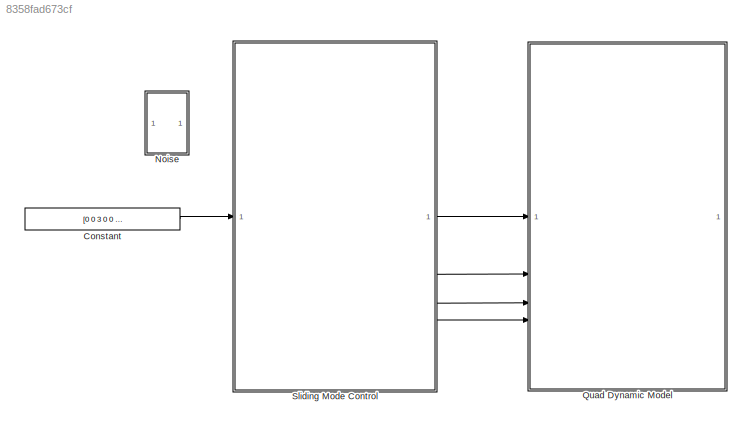
MODEL slx_8358fad673cf
KIND model
CONFIG AbsTol = auto
CONFIG EnableMultiTasking = off
CONFIG FixedStep = dT
CONFIG InitFcn = O = [0; 0; 0];        % world origin frame\nC = [0.0; 0.0; 0.0];  % camera origin frame\n\nd_initial = C - O;            % distance between camera and world frame\nang_initial = [0.0 0.0 0.0];  % initial orientation, [pi 0 pi/2] \nang_final = [0.0*pi/180  0.0*pi/180  0.0*pi/180]; \ninit_pose = [C ; ang_initial'];\nd_final=[0; 0; 3];\ndT=0.25;\ng = 9.81;\nmass = 1; L = 0.2; \nIx = 0.008; \nIy = 0.015;\nIz = 0.0...<+16ch>
CONFIG MaxStep = auto
CONFIG MinStep = auto
CONFIG RelTol = 1e-3
CONFIG SampleTimeConstraint = Unconstrained
CONFIG SolverName = ode4
CONFIG StartTime = 0.0
CONFIG StopTime = 20
BLOCK [Constant] Constant
  Value = [0 0 3 0 0 0]
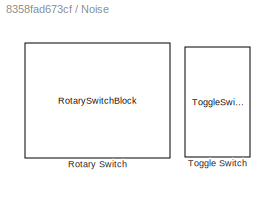
BLOCK [SubSystem] Noise
  Commented = on
BLOCK [RotarySwitchBlock] Noise/Rotary Switch
  LabelPosition = Bottom
BLOCK [ToggleSwitchBlock] Noise/Toggle Switch
  LabelPosition = Bottom
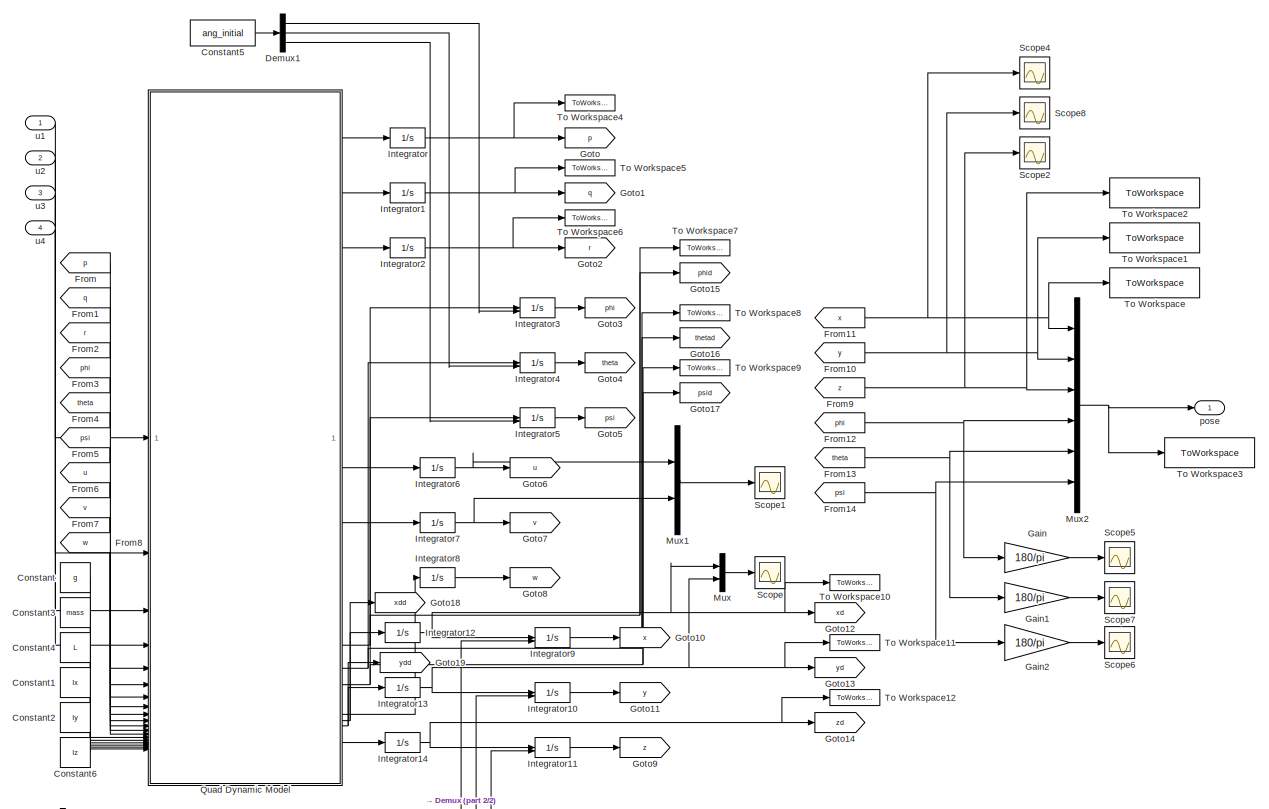
[diagram: Quad Dynamic Model - part 1/2, most of the canvas]
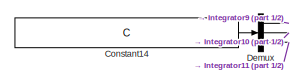
[diagram: Quad Dynamic Model - part 2/2, bottom left region]
BLOCK [SubSystem] Quad Dynamic Model
BLOCK [Constant] Quad Dynamic Model/Constant
  Value = g
BLOCK [Constant] Quad Dynamic Model/Constant1
  Value = Ix
BLOCK [Constant] Quad Dynamic Model/Constant14
  Value = C
BLOCK [Constant] Quad Dynamic Model/Constant2
  Value = Iy
BLOCK [Constant] Quad Dynamic Model/Constant3
  Value = mass
BLOCK [Constant] Quad Dynamic Model/Constant4
  Value = L
BLOCK [Constant] Quad Dynamic Model/Constant5
  Value = ang_initial
BLOCK [Constant] Quad Dynamic Model/Constant6
  Value = Iz
BLOCK [Demux] Quad Dynamic Model/Demux
  Outputs = 3
BLOCK [Demux] Quad Dynamic Model/Demux1
  Outputs = 3
BLOCK [From] Quad Dynamic Model/From
  GotoTag = p
  TagVisibility = global
BLOCK [From] Quad Dynamic Model/From1
  GotoTag = q
  TagVisibility = global
BLOCK [From] Quad Dynamic Model/From10
  GotoTag = y
  TagVisibility = global
BLOCK [From] Quad Dynamic Model/From11
  GotoTag = x
  TagVisibility = global
BLOCK [From] Quad Dynamic Model/From12
  GotoTag = phi
  TagVisibility = global
BLOCK [From] Quad Dynamic Model/From13
  GotoTag = theta
  TagVisibility = global
BLOCK [From] Quad Dynamic Model/From14
  GotoTag = psi
  TagVisibility = global
BLOCK [From] Quad Dynamic Model/From2
  GotoTag = r
  TagVisibility = global
BLOCK [From] Quad Dynamic Model/From3
  GotoTag = phi
  TagVisibility = global
BLOCK [From] Quad Dynamic Model/From4
  GotoTag = theta
  TagVisibility = global
BLOCK [From] Quad Dynamic Model/From5
  GotoTag = psi
  TagVisibility = global
BLOCK [From] Quad Dynamic Model/From6
  GotoTag = u
  TagVisibility = global
BLOCK [From] Quad Dynamic Model/From7
  GotoTag = v
  TagVisibility = global
BLOCK [From] Quad Dynamic Model/From8
  GotoTag = w
  TagVisibility = global
BLOCK [From] Quad Dynamic Model/From9
  GotoTag = z
  TagVisibility = global
BLOCK [Gain] Quad Dynamic Model/Gain
  Gain = 180/pi
BLOCK [Gain] Quad Dynamic Model/Gain1
  Gain = 180/pi
BLOCK [Gain] Quad Dynamic Model/Gain2
  Gain = 180/pi
BLOCK [Goto] Quad Dynamic Model/Goto
  GotoTag = p
  TagVisibility = global
BLOCK [Goto] Quad Dynamic Model/Goto1
  GotoTag = q
  TagVisibility = global
BLOCK [Goto] Quad Dynamic Model/Goto10
  GotoTag = x
  TagVisibility = global
BLOCK [Goto] Quad Dynamic Model/Goto11
  GotoTag = y
  TagVisibility = global
BLOCK [Goto] Quad Dynamic Model/Goto12
  GotoTag = xd
  TagVisibility = global
BLOCK [Goto] Quad Dynamic Model/Goto13
  GotoTag = yd
  TagVisibility = global
BLOCK [Goto] Quad Dynamic Model/Goto14
  GotoTag = zd
  TagVisibility = global
BLOCK [Goto] Quad Dynamic Model/Goto15
  GotoTag = phid
  TagVisibility = global
BLOCK [Goto] Quad Dynamic Model/Goto16
  GotoTag = thetad
  TagVisibility = global
BLOCK [Goto] Quad Dynamic Model/Goto17
  GotoTag = psid
  TagVisibility = global
BLOCK [Goto] Quad Dynamic Model/Goto18
  GotoTag = xdd
  TagVisibility = global
BLOCK [Goto] Quad Dynamic Model/Goto19
  GotoTag = ydd
  TagVisibility = global
BLOCK [Goto] Quad Dynamic Model/Goto2
  GotoTag = r
  TagVisibility = global
BLOCK [Goto] Quad Dynamic Model/Goto3
  GotoTag = phi
  TagVisibility = global
BLOCK [Goto] Quad Dynamic Model/Goto4
  GotoTag = theta
  TagVisibility = global
BLOCK [Goto] Quad Dynamic Model/Goto5
  GotoTag = psi
  TagVisibility = global
BLOCK [Goto] Quad Dynamic Model/Goto6
  GotoTag = u
  TagVisibility = global
BLOCK [Goto] Quad Dynamic Model/Goto7
  GotoTag = v
  TagVisibility = global
BLOCK [Goto] Quad Dynamic Model/Goto8
  GotoTag = w
  TagVisibility = global
BLOCK [Goto] Quad Dynamic Model/Goto9
  GotoTag = z
  TagVisibility = global
BLOCK [Integrator] Quad Dynamic Model/Integrator
  InitialCondition = -0.003775510005653
BLOCK [Integrator] Quad Dynamic Model/Integrator1
  InitialCondition = 0.003931066952646
BLOCK [Integrator] Quad Dynamic Model/Integrator10
  InitialConditionSource = external
BLOCK [Integrator] Quad Dynamic Model/Integrator11
  InitialConditionSource = external
BLOCK [Integrator] Quad Dynamic Model/Integrator12
BLOCK [Integrator] Quad Dynamic Model/Integrator13
BLOCK [Integrator] Quad Dynamic Model/Integrator14
BLOCK [Integrator] Quad Dynamic Model/Integrator2
  InitialCondition = 0.005723309703171
BLOCK [Integrator] Quad Dynamic Model/Integrator3
  InitialConditionSource = external
BLOCK [Integrator] Quad Dynamic Model/Integrator4
  InitialConditionSource = external
BLOCK [Integrator] Quad Dynamic Model/Integrator5
  InitialConditionSource = external
BLOCK [Integrator] Quad Dynamic Model/Integrator6
BLOCK [Integrator] Quad Dynamic Model/Integrator7
BLOCK [Integrator] Quad Dynamic Model/Integrator8
BLOCK [Integrator] Quad Dynamic Model/Integrator9
  InitialConditionSource = external
BLOCK [Mux] Quad Dynamic Model/Mux
  DisplayOption = bar
  Inputs = 2
BLOCK [Mux] Quad Dynamic Model/Mux1
  DisplayOption = bar
  Inputs = 2
BLOCK [Mux] Quad Dynamic Model/Mux2
  DisplayOption = bar
  Inputs = 6
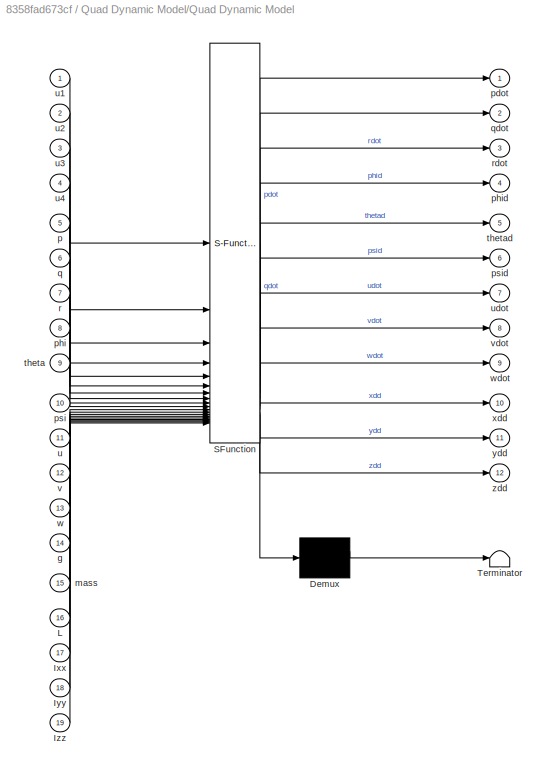
BLOCK [SubSystem] Quad Dynamic Model/Quad Dynamic Model
  ErrorFcn = Stateflow.Translate.translate
  PermitHierarchicalResolution = ExplicitOnly
  SFBlockType = MATLAB Function
  TreatAsAtomicUnit = on
BLOCK [Demux] Quad Dynamic Model/Quad Dynamic Model/ Demux 
  Outputs = 1
BLOCK [S-Function] Quad Dynamic Model/Quad Dynamic Model/ SFunction 
  EnableBusSupport = on
  FunctionName = sf_sfun
  PortCounts = [19 13]
  SFcnIsStateOwnerBlock = off
  SFunctionDeploymentMode = off
  Tag = Stateflow S-Function 2
BLOCK [Terminator] Quad Dynamic Model/Quad Dynamic Model/ Terminator 
BLOCK [Inport] Quad Dynamic Model/Quad Dynamic Model/Ixx
  Port = 17
BLOCK [Inport] Quad Dynamic Model/Quad Dynamic Model/Iyy
  Port = 18
BLOCK [Inport] Quad Dynamic Model/Quad Dynamic Model/Izz
  Port = 19
BLOCK [Inport] Quad Dynamic Model/Quad Dynamic Model/L
  Port = 16
BLOCK [Inport] Quad Dynamic Model/Quad Dynamic Model/g
  Port = 14
BLOCK [Inport] Quad Dynamic Model/Quad Dynamic Model/mass
  Port = 15
BLOCK [Inport] Quad Dynamic Model/Quad Dynamic Model/p
  Port = 5
BLOCK [Outport] Quad Dynamic Model/Quad Dynamic Model/pdot
BLOCK [Inport] Quad Dynamic Model/Quad Dynamic Model/phi
  Port = 8
BLOCK [Outport] Quad Dynamic Model/Quad Dynamic Model/phid
  Port = 4
BLOCK [Inport] Quad Dynamic Model/Quad Dynamic Model/psi
  Port = 10
BLOCK [Outport] Quad Dynamic Model/Quad Dynamic Model/psid
  Port = 6
BLOCK [Inport] Quad Dynamic Model/Quad Dynamic Model/q
  Port = 6
BLOCK [Outport] Quad Dynamic Model/Quad Dynamic Model/qdot
  Port = 2
BLOCK [Inport] Quad Dynamic Model/Quad Dynamic Model/r
  Port = 7
BLOCK [Outport] Quad Dynamic Model/Quad Dynamic Model/rdot
  Port = 3
BLOCK [Inport] Quad Dynamic Model/Quad Dynamic Model/theta
  Port = 9
BLOCK [Outport] Quad Dynamic Model/Quad Dynamic Model/thetad
  Port = 5
BLOCK [Inport] Quad Dynamic Model/Quad Dynamic Model/u
  Port = 11
BLOCK [Inport] Quad Dynamic Model/Quad Dynamic Model/u1
BLOCK [Inport] Quad Dynamic Model/Quad Dynamic Model/u2
  Port = 2
BLOCK [Inport] Quad Dynamic Model/Quad Dynamic Model/u3
  Port = 3
BLOCK [Inport] Quad Dynamic Model/Quad Dynamic Model/u4
  Port = 4
BLOCK [Outport] Quad Dynamic Model/Quad Dynamic Model/udot
  Port = 7
BLOCK [Inport] Quad Dynamic Model/Quad Dynamic Model/v
  Port = 12
BLOCK [Outport] Quad Dynamic Model/Quad Dynamic Model/vdot
  Port = 8
BLOCK [Inport] Quad Dynamic Model/Quad Dynamic Model/w
  Port = 13
BLOCK [Outport] Quad Dynamic Model/Quad Dynamic Model/wdot
  Port = 9
BLOCK [Outport] Quad Dynamic Model/Quad Dynamic Model/xdd
  Port = 10
BLOCK [Outport] Quad Dynamic Model/Quad Dynamic Model/ydd
  Port = 11
BLOCK [Outport] Quad Dynamic Model/Quad Dynamic Model/zdd
  Port = 12
BLOCK [Scope] Quad Dynamic Model/Scope
  Floating = off
  NumInputPorts = 1
  ScopeSpecificationString = Simulink.scopes.TimeScopeBlockCfg('CurrentConfiguration', extmgr.ConfigurationSet(extmgr.Configuration('Core','General UI',true),extmgr.Configuration('Core','Source UI',true),extmgr.Configuration('Sources','WiredSimulink',true,'DataLoggingVariableName','ScopeData2'),extmgr.Configuration('Visuals','Time Domain',true,'SerializedDisplays',{struct('MinYLimReal','-0.41338','MaxYLimReal','0.07444','YLab...<+1440ch>
BLOCK [Scope] Quad Dynamic Model/Scope1
  Floating = off
  NumInputPorts = 1
  ScopeSpecificationString = Simulink.scopes.TimeScopeBlockCfg('CurrentConfiguration', extmgr.ConfigurationSet(extmgr.Configuration('Core','General UI',true),extmgr.Configuration('Core','Source UI',true),extmgr.Configuration('Sources','WiredSimulink',true,'DataLoggingVariableName','ScopeData3'),extmgr.Configuration('Visuals','Time Domain',true,'SerializedDisplays',{struct('MinYLimReal','-0.11331','MaxYLimReal','0.4466','YLabe...<+1434ch>
BLOCK [Scope] Quad Dynamic Model/Scope2
  Floating = off
  NumInputPorts = 1
  ScopeSpecificationString = Simulink.scopes.TimeScopeBlockCfg('CurrentConfiguration', extmgr.ConfigurationSet(extmgr.Configuration('Core','General UI',true),extmgr.Configuration('Core','Source UI',true),extmgr.Configuration('Sources','WiredSimulink',true,'DataLoggingVariableName','ScopeData2'),extmgr.Configuration('Visuals','Time Domain',true,'SerializedDisplays',{struct('MinYLimReal','-0.375','MaxYLimReal','3.375','YLabelRe...<+1520ch>
BLOCK [Scope] Quad Dynamic Model/Scope4
  Floating = off
  NumInputPorts = 1
  ScopeSpecificationString = Simulink.scopes.TimeScopeBlockCfg('CurrentConfiguration', extmgr.ConfigurationSet(extmgr.Configuration('Core','General UI',true),extmgr.Configuration('Core','Source UI',true),extmgr.Configuration('Sources','WiredSimulink',true,'DataLoggingVariableName','ScopeData3'),extmgr.Configuration('Visuals','Time Domain',true,'SerializedDisplays',{struct('MinYLimReal','-0.000006','MaxYLimReal','0.000056','YL...<+1542ch>
BLOCK [Scope] Quad Dynamic Model/Scope5
  Floating = off
  NumInputPorts = 1
  ScopeSpecificationString = Simulink.scopes.TimeScopeBlockCfg('CurrentConfiguration', extmgr.ConfigurationSet(extmgr.Configuration('Core','General UI',true),extmgr.Configuration('Core','Source UI',true),extmgr.Configuration('Sources','WiredSimulink',true,'DataLoggingVariableName','ScopeData4'),extmgr.Configuration('Visuals','Time Domain',true,'SerializedDisplays',{struct('MinYLimReal','-0.01015','MaxYLimReal','0.00408','YLab...<+1505ch>
BLOCK [Scope] Quad Dynamic Model/Scope6
  Floating = off
  NumInputPorts = 1
  ScopeSpecificationString = Simulink.scopes.TimeScopeBlockCfg('CurrentConfiguration', extmgr.ConfigurationSet(extmgr.Configuration('Core','General UI',true),extmgr.Configuration('Core','Source UI',true),extmgr.Configuration('Sources','WiredSimulink',true,'DataLoggingVariableName','ScopeData5'),extmgr.Configuration('Visuals','Time Domain',true,'SerializedDisplays',{struct('MinYLimReal','-0.00224','MaxYLimReal','0.02015','YLab...<+1506ch>
BLOCK [Scope] Quad Dynamic Model/Scope7
  Floating = off
  NumInputPorts = 1
  ScopeSpecificationString = Simulink.scopes.TimeScopeBlockCfg('CurrentConfiguration', extmgr.ConfigurationSet(extmgr.Configuration('Core','General UI',true),extmgr.Configuration('Core','Source UI',true),extmgr.Configuration('Sources','WiredSimulink',true,'DataLoggingVariableName','ScopeData6'),extmgr.Configuration('Visuals','Time Domain',true,'SerializedDisplays',{struct('MinYLimReal','-0.00428','MaxYLimReal','0.01064','YLab...<+1506ch>
BLOCK [Scope] Quad Dynamic Model/Scope8
  Floating = off
  NumInputPorts = 1
  ScopeSpecificationString = Simulink.scopes.TimeScopeBlockCfg('CurrentConfiguration', extmgr.ConfigurationSet(extmgr.Configuration('Core','General UI',true),extmgr.Configuration('Core','Source UI',true),extmgr.Configuration('Sources','WiredSimulink',true,'DataLoggingVariableName','ScopeData1'),extmgr.Configuration('Visuals','Time Domain',true,'SerializedDisplays',{struct('MinYLimReal','-0.000006','MaxYLimReal','0.000054','YL...<+1521ch>
BLOCK [ToWorkspace] Quad Dynamic Model/To Workspace
  FixptAsFi = on
  MaxDataPoints = inf
  SampleTime = -1
  Save2DSignal = 2-D array (concatenate along first dimension)
  VariableName = x
BLOCK [ToWorkspace] Quad Dynamic Model/To Workspace1
  FixptAsFi = on
  MaxDataPoints = inf
  SampleTime = -1
  Save2DSignal = 2-D array (concatenate along first dimension)
  VariableName = y
BLOCK [ToWorkspace] Quad Dynamic Model/To Workspace10
  FixptAsFi = on
  MaxDataPoints = inf
  SampleTime = -1
  VariableName = xd
BLOCK [ToWorkspace] Quad Dynamic Model/To Workspace11
  FixptAsFi = on
  MaxDataPoints = inf
  SampleTime = -1
  VariableName = yd
BLOCK [ToWorkspace] Quad Dynamic Model/To Workspace12
  FixptAsFi = on
  MaxDataPoints = inf
  SampleTime = -1
  VariableName = zd
BLOCK [ToWorkspace] Quad Dynamic Model/To Workspace2
  FixptAsFi = on
  MaxDataPoints = inf
  SampleTime = -1
  Save2DSignal = 2-D array (concatenate along first dimension)
  VariableName = z
BLOCK [ToWorkspace] Quad Dynamic Model/To Workspace3
  FixptAsFi = on
  MaxDataPoints = inf
  SampleTime = -1
  Save2DSignal = 2-D array (concatenate along first dimension)
  VariableName = pose
BLOCK [ToWorkspace] Quad Dynamic Model/To Workspace4
  FixptAsFi = on
  MaxDataPoints = inf
  SampleTime = -1
  VariableName = p
BLOCK [ToWorkspace] Quad Dynamic Model/To Workspace5
  FixptAsFi = on
  MaxDataPoints = inf
  SampleTime = -1
  VariableName = q
BLOCK [ToWorkspace] Quad Dynamic Model/To Workspace6
  FixptAsFi = on
  MaxDataPoints = inf
  SampleTime = -1
  VariableName = r
BLOCK [ToWorkspace] Quad Dynamic Model/To Workspace7
  FixptAsFi = on
  MaxDataPoints = inf
  SampleTime = -1
  VariableName = phid
BLOCK [ToWorkspace] Quad Dynamic Model/To Workspace8
  FixptAsFi = on
  MaxDataPoints = inf
  SampleTime = -1
  VariableName = thetad
BLOCK [ToWorkspace] Quad Dynamic Model/To Workspace9
  FixptAsFi = on
  MaxDataPoints = inf
  SampleTime = -1
  VariableName = psid
BLOCK [Outport] Quad Dynamic Model/pose
BLOCK [Inport] Quad Dynamic Model/u1
BLOCK [Inport] Quad Dynamic Model/u2
  Port = 2
BLOCK [Inport] Quad Dynamic Model/u3
  Port = 3
BLOCK [Inport] Quad Dynamic Model/u4
  Port = 4
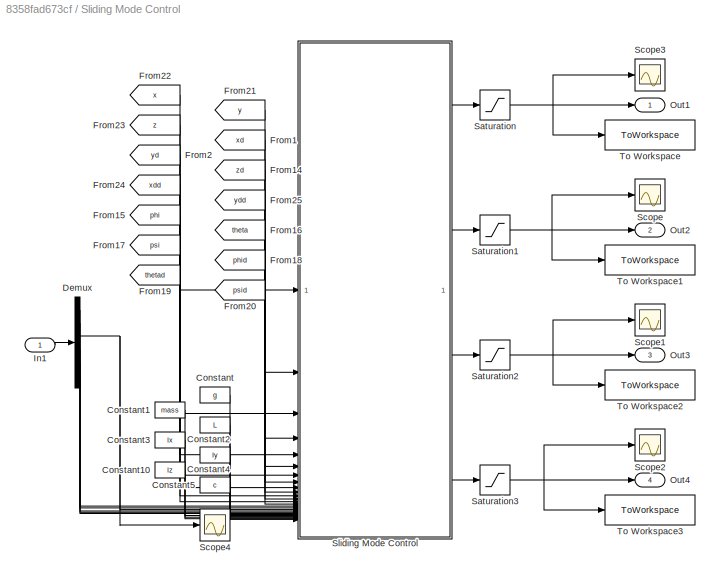
BLOCK [SubSystem] Sliding Mode Control
BLOCK [Constant] Sliding Mode Control/Constant
  Value = g
BLOCK [Constant] Sliding Mode Control/Constant1
  Value = mass
BLOCK [Constant] Sliding Mode Control/Constant10
  Value = Iz
BLOCK [Constant] Sliding Mode Control/Constant2
  Value = L
BLOCK [Constant] Sliding Mode Control/Constant3
  Value = Ix
BLOCK [Constant] Sliding Mode Control/Constant4
  Value = Iy
BLOCK [Constant] Sliding Mode Control/Constant5
  Value = c
BLOCK [Demux] Sliding Mode Control/Demux
  Outputs = 6
BLOCK [From] Sliding Mode Control/From1
  GotoTag = xd
  TagVisibility = global
BLOCK [From] Sliding Mode Control/From14
  GotoTag = zd
  TagVisibility = global
BLOCK [From] Sliding Mode Control/From15
  GotoTag = phi
  TagVisibility = global
BLOCK [From] Sliding Mode Control/From16
  GotoTag = theta
  TagVisibility = global
BLOCK [From] Sliding Mode Control/From17
  GotoTag = psi
  TagVisibility = global
BLOCK [From] Sliding Mode Control/From18
  GotoTag = phid
  TagVisibility = global
BLOCK [From] Sliding Mode Control/From19
  GotoTag = thetad
  TagVisibility = global
BLOCK [From] Sliding Mode Control/From2
  GotoTag = yd
  TagVisibility = global
BLOCK [From] Sliding Mode Control/From20
  GotoTag = psid
  TagVisibility = global
BLOCK [From] Sliding Mode Control/From21
  GotoTag = y
  TagVisibility = global
BLOCK [From] Sliding Mode Control/From22
  GotoTag = x
  TagVisibility = global
BLOCK [From] Sliding Mode Control/From23
  GotoTag = z
  TagVisibility = global
BLOCK [From] Sliding Mode Control/From24
  GotoTag = xdd
  TagVisibility = global
BLOCK [From] Sliding Mode Control/From25
  GotoTag = ydd
  TagVisibility = global
BLOCK [Inport] Sliding Mode Control/In1
BLOCK [Outport] Sliding Mode Control/Out1
BLOCK [Outport] Sliding Mode Control/Out2
  Port = 2
BLOCK [Outport] Sliding Mode Control/Out3
  Port = 3
BLOCK [Outport] Sliding Mode Control/Out4
  Port = 4
BLOCK [Saturate] Sliding Mode Control/Saturation
  LowerLimit = 9
  UpperLimit = 13
BLOCK [Saturate] Sliding Mode Control/Saturation1
  LowerLimit = -8
  UpperLimit = 8
BLOCK [Saturate] Sliding Mode Control/Saturation2
  LowerLimit = -8
  UpperLimit = 8
BLOCK [Saturate] Sliding Mode Control/Saturation3
  LowerLimit = -3
  UpperLimit = 4
BLOCK [Scope] Sliding Mode Control/Scope
  Floating = off
  NumInputPorts = 1
  ScopeSpecificationString = Simulink.scopes.TimeScopeBlockCfg('CurrentConfiguration', extmgr.ConfigurationSet(extmgr.Configuration('Core','General UI',true),extmgr.Configuration('Core','Source UI',true),extmgr.Configuration('Sources','WiredSimulink',true,'DataLoggingVariableName','ScopeData7'),extmgr.Configuration('Visuals','Time Domain',true,'SerializedDisplays',{struct('MinYLimReal','-0.00144','MaxYLimReal','0.00598','YLab...<+1421ch>
BLOCK [Scope] Sliding Mode Control/Scope1
  Floating = off
  NumInputPorts = 1
  ScopeSpecificationString = Simulink.scopes.TimeScopeBlockCfg('CurrentConfiguration', extmgr.ConfigurationSet(extmgr.Configuration('Core','General UI',true),extmgr.Configuration('Core','Source UI',true),extmgr.Configuration('Sources','WiredSimulink',true,'DataLoggingVariableName','ScopeData8'),extmgr.Configuration('Visuals','Time Domain',true,'SerializedDisplays',{struct('MinYLimReal','-0.00655','MaxYLimReal','0.00749','YLab...<+1425ch>
BLOCK [Scope] Sliding Mode Control/Scope2
  Floating = off
  NumInputPorts = 1
  ScopeSpecificationString = Simulink.scopes.TimeScopeBlockCfg('CurrentConfiguration', extmgr.ConfigurationSet(extmgr.Configuration('Core','General UI',true),extmgr.Configuration('Core','Source UI',true),extmgr.Configuration('Sources','WiredSimulink',true,'DataLoggingVariableName','ScopeData9'),extmgr.Configuration('Visuals','Time Domain',true,'SerializedDisplays',{struct('MinYLimReal','-0.00223','MaxYLimReal','0.01656','YLab...<+1370ch>
BLOCK [Scope] Sliding Mode Control/Scope3
  Floating = off
  NumInputPorts = 1
  ScopeSpecificationString = Simulink.scopes.TimeScopeBlockCfg('CurrentConfiguration', extmgr.ConfigurationSet(extmgr.Configuration('Core','General UI',true),extmgr.Configuration('Core','Source UI',true),extmgr.Configuration('Sources','WiredSimulink',true,'DataLoggingVariableName','ScopeData10'),extmgr.Configuration('Visuals','Time Domain',true,'SerializedDisplays',{struct('MinYLimReal','9.80211','MaxYLimReal','9.84833','YLab...<+1442ch>
BLOCK [Scope] Sliding Mode Control/Scope4
  Floating = off
  NumInputPorts = 1
  ScopeSpecificationString = Simulink.scopes.TimeScopeBlockCfg('CurrentConfiguration', extmgr.ConfigurationSet(extmgr.Configuration('Core','General UI',true),extmgr.Configuration('Core','Source UI',true),extmgr.Configuration('Sources','WiredSimulink',true,'DataLoggingVariableName','ScopeData3'),extmgr.Configuration('Visuals','Time Domain',true,'SerializedDisplays',{struct('MinYLimReal','-0.30812','MaxYLimReal','2.77312','YLab...<+1391ch>
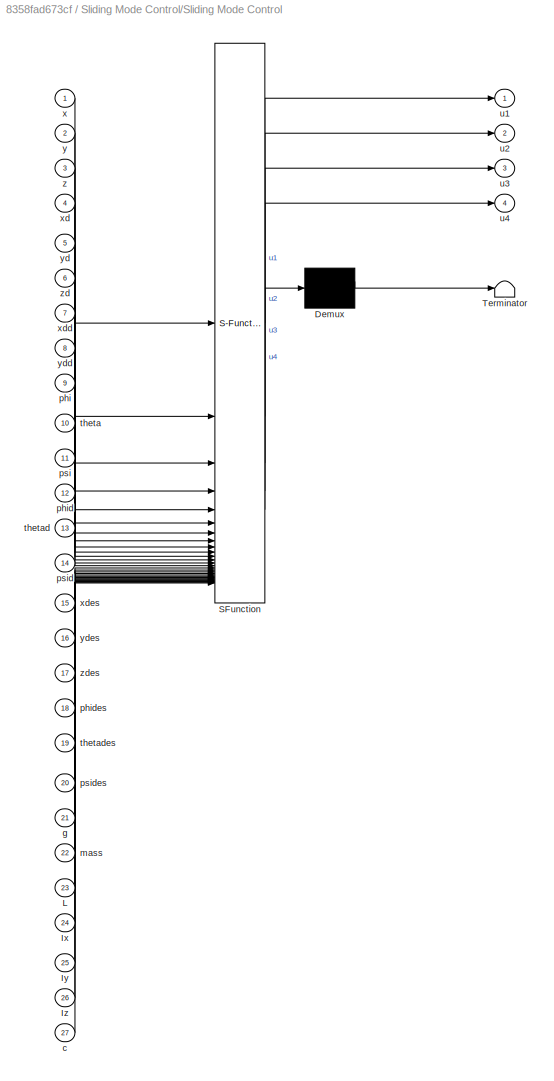
BLOCK [SubSystem] Sliding Mode Control/Sliding Mode Control
  ErrorFcn = Stateflow.Translate.translate
  PermitHierarchicalResolution = ExplicitOnly
  SFBlockType = MATLAB Function
  TreatAsAtomicUnit = on
BLOCK [Demux] Sliding Mode Control/Sliding Mode Control/ Demux 
  Outputs = 1
BLOCK [S-Function] Sliding Mode Control/Sliding Mode Control/ SFunction 
  EnableBusSupport = on
  FunctionName = sf_sfun
  PortCounts = [27 5]
  SFcnIsStateOwnerBlock = off
  SFunctionDeploymentMode = off
  Tag = Stateflow S-Function 7
BLOCK [Terminator] Sliding Mode Control/Sliding Mode Control/ Terminator 
BLOCK [Inport] Sliding Mode Control/Sliding Mode Control/Ix
  Port = 24
BLOCK [Inport] Sliding Mode Control/Sliding Mode Control/Iy
  Port = 25
BLOCK [Inport] Sliding Mode Control/Sliding Mode Control/Iz
  Port = 26
BLOCK [Inport] Sliding Mode Control/Sliding Mode Control/L
  Port = 23
BLOCK [Inport] Sliding Mode Control/Sliding Mode Control/c
  Port = 27
BLOCK [Inport] Sliding Mode Control/Sliding Mode Control/g
  Port = 21
BLOCK [Inport] Sliding Mode Control/Sliding Mode Control/mass
  Port = 22
BLOCK [Inport] Sliding Mode Control/Sliding Mode Control/phi
  Port = 9
BLOCK [Inport] Sliding Mode Control/Sliding Mode Control/phid
  Port = 12
BLOCK [Inport] Sliding Mode Control/Sliding Mode Control/phides
  Port = 18
BLOCK [Inport] Sliding Mode Control/Sliding Mode Control/psi
  Port = 11
BLOCK [Inport] Sliding Mode Control/Sliding Mode Control/psid
  Port = 14
BLOCK [Inport] Sliding Mode Control/Sliding Mode Control/psides
  Port = 20
BLOCK [Inport] Sliding Mode Control/Sliding Mode Control/theta
  Port = 10
BLOCK [Inport] Sliding Mode Control/Sliding Mode Control/thetad
  Port = 13
BLOCK [Inport] Sliding Mode Control/Sliding Mode Control/thetades
  Port = 19
BLOCK [Outport] Sliding Mode Control/Sliding Mode Control/u1
BLOCK [Outport] Sliding Mode Control/Sliding Mode Control/u2
  Port = 2
BLOCK [Outport] Sliding Mode Control/Sliding Mode Control/u3
  Port = 3
BLOCK [Outport] Sliding Mode Control/Sliding Mode Control/u4
  Port = 4
BLOCK [Inport] Sliding Mode Control/Sliding Mode Control/x
BLOCK [Inport] Sliding Mode Control/Sliding Mode Control/xd
  Port = 4
BLOCK [Inport] Sliding Mode Control/Sliding Mode Control/xdd
  Port = 7
BLOCK [Inport] Sliding Mode Control/Sliding Mode Control/xdes
  Port = 15
BLOCK [Inport] Sliding Mode Control/Sliding Mode Control/y
  Port = 2
BLOCK [Inport] Sliding Mode Control/Sliding Mode Control/yd
  Port = 5
BLOCK [Inport] Sliding Mode Control/Sliding Mode Control/ydd
  Port = 8
BLOCK [Inport] Sliding Mode Control/Sliding Mode Control/ydes
  Port = 16
BLOCK [Inport] Sliding Mode Control/Sliding Mode Control/z
  Port = 3
BLOCK [Inport] Sliding Mode Control/Sliding Mode Control/zd
  Port = 6
BLOCK [Inport] Sliding Mode Control/Sliding Mode Control/zdes
  Port = 17
BLOCK [ToWorkspace] Sliding Mode Control/To Workspace
  FixptAsFi = on
  MaxDataPoints = inf
  SampleTime = -1
  SaveFormat = Timeseries
  VariableName = u1
BLOCK [ToWorkspace] Sliding Mode Control/To Workspace1
  FixptAsFi = on
  MaxDataPoints = inf
  SampleTime = -1
  SaveFormat = Timeseries
  VariableName = u2
BLOCK [ToWorkspace] Sliding Mode Control/To Workspace2
  FixptAsFi = on
  MaxDataPoints = inf
  SampleTime = -1
  SaveFormat = Timeseries
  VariableName = u3
BLOCK [ToWorkspace] Sliding Mode Control/To Workspace3
  FixptAsFi = on
  MaxDataPoints = inf
  SampleTime = -1
  SaveFormat = Timeseries
  VariableName = u4
LINE Constant:1 -> Sliding Mode Control:1
LINE Quad Dynamic Model/Constant14:1 -> Quad Dynamic Model/Demux:1
LINE Quad Dynamic Model/Constant1:1 -> Quad Dynamic Model/Quad Dynamic Model:17
LINE Quad Dynamic Model/Constant2:1 -> Quad Dynamic Model/Quad Dynamic Model:18
LINE Quad Dynamic Model/Constant3:1 -> Quad Dynamic Model/Quad Dynamic Model:15
LINE Quad Dynamic Model/Constant4:1 -> Quad Dynamic Model/Quad Dynamic Model:16
LINE Quad Dynamic Model/Constant5:1 -> Quad Dynamic Model/Demux1:1
LINE Quad Dynamic Model/Constant6:1 -> Quad Dynamic Model/Quad Dynamic Model:19
LINE Quad Dynamic Model/Constant:1 -> Quad Dynamic Model/Quad Dynamic Model:14
LINE Quad Dynamic Model/Demux1:1 -> Quad Dynamic Model/Integrator3:2
LINE Quad Dynamic Model/Demux1:2 -> Quad Dynamic Model/Integrator4:2
LINE Quad Dynamic Model/Demux1:3 -> Quad Dynamic Model/Integrator5:2
LINE Quad Dynamic Model/Demux:1 -> Quad Dynamic Model/Integrator9:2
LINE Quad Dynamic Model/Demux:2 -> Quad Dynamic Model/Integrator10:2
LINE Quad Dynamic Model/Demux:3 -> Quad Dynamic Model/Integrator11:2
NET Quad Dynamic Model/From10:1 -> Quad Dynamic Model/Mux2:2, Quad Dynamic Model/Scope8:1, Quad Dynamic Model/To Workspace1:1
NET Quad Dynamic Model/From11:1 -> Quad Dynamic Model/Mux2:1, Quad Dynamic Model/Scope4:1, Quad Dynamic Model/To Workspace:1
NET Quad Dynamic Model/From12:1 -> Quad Dynamic Model/Gain:1, Quad Dynamic Model/Mux2:4
NET Quad Dynamic Model/From13:1 -> Quad Dynamic Model/Gain1:1, Quad Dynamic Model/Mux2:5
NET Quad Dynamic Model/From14:1 -> Quad Dynamic Model/Gain2:1, Quad Dynamic Model/Mux2:6
LINE Quad Dynamic Model/From1:1 -> Quad Dynamic Model/Quad Dynamic Model:6
LINE Quad Dynamic Model/From2:1 -> Quad Dynamic Model/Quad Dynamic Model:7
LINE Quad Dynamic Model/From3:1 -> Quad Dynamic Model/Quad Dynamic Model:8
LINE Quad Dynamic Model/From4:1 -> Quad Dynamic Model/Quad Dynamic Model:9
LINE Quad Dynamic Model/From5:1 -> Quad Dynamic Model/Quad Dynamic Model:10
LINE Quad Dynamic Model/From6:1 -> Quad Dynamic Model/Quad Dynamic Model:11
LINE Quad Dynamic Model/From7:1 -> Quad Dynamic Model/Quad Dynamic Model:12
LINE Quad Dynamic Model/From8:1 -> Quad Dynamic Model/Quad Dynamic Model:13
NET Quad Dynamic Model/From9:1 -> Quad Dynamic Model/Mux2:3, Quad Dynamic Model/Scope2:1, Quad Dynamic Model/To Workspace2:1
LINE Quad Dynamic Model/From:1 -> Quad Dynamic Model/Quad Dynamic Model:5
LINE Quad Dynamic Model/Gain1:1 -> Quad Dynamic Model/Scope7:1
LINE Quad Dynamic Model/Gain2:1 -> Quad Dynamic Model/Scope6:1
LINE Quad Dynamic Model/Gain:1 -> Quad Dynamic Model/Scope5:1
LINE Quad Dynamic Model/Integrator10:1 -> Quad Dynamic Model/Goto11:1
LINE Quad Dynamic Model/Integrator11:1 -> Quad Dynamic Model/Goto9:1
NET Quad Dynamic Model/Integrator12:1 -> Quad Dynamic Model/Goto12:1, Quad Dynamic Model/Integrator9:1, Quad Dynamic Model/Mux:1, Quad Dynamic Model/To Workspace10:1
NET Quad Dynamic Model/Integrator13:1 -> Quad Dynamic Model/Goto13:1, Quad Dynamic Model/Integrator10:1, Quad Dynamic Model/Mux:2, Quad Dynamic Model/To Workspace11:1
NET Quad Dynamic Model/Integrator14:1 -> Quad Dynamic Model/Goto14:1, Quad Dynamic Model/Integrator11:1, Quad Dynamic Model/To Workspace12:1
NET Quad Dynamic Model/Integrator1:1 -> Quad Dynamic Model/Goto1:1, Quad Dynamic Model/To Workspace5:1
NET Quad Dynamic Model/Integrator2:1 -> Quad Dynamic Model/Goto2:1, Quad Dynamic Model/To Workspace6:1
LINE Quad Dynamic Model/Integrator3:1 -> Quad Dynamic Model/Goto3:1
LINE Quad Dynamic Model/Integrator4:1 -> Quad Dynamic Model/Goto4:1
LINE Quad Dynamic Model/Integrator5:1 -> Quad Dynamic Model/Goto5:1
NET Quad Dynamic Model/Integrator6:1 -> Quad Dynamic Model/Goto6:1, Quad Dynamic Model/Mux1:1
NET Quad Dynamic Model/Integrator7:1 -> Quad Dynamic Model/Goto7:1, Quad Dynamic Model/Mux1:2
LINE Quad Dynamic Model/Integrator8:1 -> Quad Dynamic Model/Goto8:1
LINE Quad Dynamic Model/Integrator9:1 -> Quad Dynamic Model/Goto10:1
NET Quad Dynamic Model/Integrator:1 -> Quad Dynamic Model/Goto:1, Quad Dynamic Model/To Workspace4:1
LINE Quad Dynamic Model/Mux1:1 -> Quad Dynamic Model/Scope1:1
NET Quad Dynamic Model/Mux2:1 -> Quad Dynamic Model/To Workspace3:1, Quad Dynamic Model/pose:1
LINE Quad Dynamic Model/Mux:1 -> Quad Dynamic Model/Scope:1
LINE Quad Dynamic Model/Quad Dynamic Model:1 -> Quad Dynamic Model/Integrator:1
NET Quad Dynamic Model/Quad Dynamic Model:10 -> Quad Dynamic Model/Goto18:1, Quad Dynamic Model/Integrator12:1
NET Quad Dynamic Model/Quad Dynamic Model:11 -> Quad Dynamic Model/Goto19:1, Quad Dynamic Model/Integrator13:1
LINE Quad Dynamic Model/Quad Dynamic Model:12 -> Quad Dynamic Model/Integrator14:1
LINE Quad Dynamic Model/Quad Dynamic Model:2 -> Quad Dynamic Model/Integrator1:1
LINE Quad Dynamic Model/Quad Dynamic Model:3 -> Quad Dynamic Model/Integrator2:1
NET Quad Dynamic Model/Quad Dynamic Model:4 -> Quad Dynamic Model/Goto15:1, Quad Dynamic Model/Integrator3:1, Quad Dynamic Model/To Workspace7:1
NET Quad Dynamic Model/Quad Dynamic Model:5 -> Quad Dynamic Model/Goto16:1, Quad Dynamic Model/Integrator4:1, Quad Dynamic Model/To Workspace8:1
NET Quad Dynamic Model/Quad Dynamic Model:6 -> Quad Dynamic Model/Goto17:1, Quad Dynamic Model/Integrator5:1, Quad Dynamic Model/To Workspace9:1
LINE Quad Dynamic Model/Quad Dynamic Model:7 -> Quad Dynamic Model/Integrator6:1
LINE Quad Dynamic Model/Quad Dynamic Model:8 -> Quad Dynamic Model/Integrator7:1
LINE Quad Dynamic Model/Quad Dynamic Model:9 -> Quad Dynamic Model/Integrator8:1
LINE Quad Dynamic Model/u1:1 -> Quad Dynamic Model/Quad Dynamic Model:1
LINE Quad Dynamic Model/u2:1 -> Quad Dynamic Model/Quad Dynamic Model:2
LINE Quad Dynamic Model/u3:1 -> Quad Dynamic Model/Quad Dynamic Model:3
LINE Quad Dynamic Model/u4:1 -> Quad Dynamic Model/Quad Dynamic Model:4
LINE Sliding Mode Control/Constant10:1 -> Sliding Mode Control/Sliding Mode Control:26
LINE Sliding Mode Control/Constant1:1 -> Sliding Mode Control/Sliding Mode Control:22
LINE Sliding Mode Control/Constant2:1 -> Sliding Mode Control/Sliding Mode Control:23
LINE Sliding Mode Control/Constant3:1 -> Sliding Mode Control/Sliding Mode Control:24
LINE Sliding Mode Control/Constant4:1 -> Sliding Mode Control/Sliding Mode Control:25
LINE Sliding Mode Control/Constant5:1 -> Sliding Mode Control/Sliding Mode Control:27
LINE Sliding Mode Control/Constant:1 -> Sliding Mode Control/Sliding Mode Control:21
LINE Sliding Mode Control/Demux:1 -> Sliding Mode Control/Sliding Mode Control:15
LINE Sliding Mode Control/Demux:2 -> Sliding Mode Control/Sliding Mode Control:16
NET Sliding Mode Control/Demux:3 -> Sliding Mode Control/Scope4:1, Sliding Mode Control/Sliding Mode Control:17
LINE Sliding Mode Control/Demux:4 -> Sliding Mode Control/Sliding Mode Control:18
LINE Sliding Mode Control/Demux:5 -> Sliding Mode Control/Sliding Mode Control:19
LINE Sliding Mode Control/Demux:6 -> Sliding Mode Control/Sliding Mode Control:20
LINE Sliding Mode Control/From14:1 -> Sliding Mode Control/Sliding Mode Control:6
LINE Sliding Mode Control/From15:1 -> Sliding Mode Control/Sliding Mode Control:9
LINE Sliding Mode Control/From16:1 -> Sliding Mode Control/Sliding Mode Control:10
LINE Sliding Mode Control/From17:1 -> Sliding Mode Control/Sliding Mode Control:11
LINE Sliding Mode Control/From18:1 -> Sliding Mode Control/Sliding Mode Control:12
LINE Sliding Mode Control/From19:1 -> Sliding Mode Control/Sliding Mode Control:13
LINE Sliding Mode Control/From1:1 -> Sliding Mode Control/Sliding Mode Control:4
LINE Sliding Mode Control/From20:1 -> Sliding Mode Control/Sliding Mode Control:14
LINE Sliding Mode Control/From21:1 -> Sliding Mode Control/Sliding Mode Control:2
LINE Sliding Mode Control/From22:1 -> Sliding Mode Control/Sliding Mode Control:1
LINE Sliding Mode Control/From23:1 -> Sliding Mode Control/Sliding Mode Control:3
LINE Sliding Mode Control/From24:1 -> Sliding Mode Control/Sliding Mode Control:7
LINE Sliding Mode Control/From25:1 -> Sliding Mode Control/Sliding Mode Control:8
LINE Sliding Mode Control/From2:1 -> Sliding Mode Control/Sliding Mode Control:5
LINE Sliding Mode Control/In1:1 -> Sliding Mode Control/Demux:1
NET Sliding Mode Control/Saturation1:1 -> Sliding Mode Control/Out2:1, Sliding Mode Control/Scope:1, Sliding Mode Control/To Workspace1:1
NET Sliding Mode Control/Saturation2:1 -> Sliding Mode Control/Out3:1, Sliding Mode Control/Scope1:1, Sliding Mode Control/To Workspace2:1
NET Sliding Mode Control/Saturation3:1 -> Sliding Mode Control/Out4:1, Sliding Mode Control/Scope2:1, Sliding Mode Control/To Workspace3:1
NET Sliding Mode Control/Saturation:1 -> Sliding Mode Control/Out1:1, Sliding Mode Control/Scope3:1, Sliding Mode Control/To Workspace:1
LINE Sliding Mode Control/Sliding Mode Control:1 -> Sliding Mode Control/Saturation:1
LINE Sliding Mode Control/Sliding Mode Control:2 -> Sliding Mode Control/Saturation1:1
LINE Sliding Mode Control/Sliding Mode Control:3 -> Sliding Mode Control/Saturation2:1
LINE Sliding Mode Control/Sliding Mode Control:4 -> Sliding Mode Control/Saturation3:1
LINE Sliding Mode Control:1 -> Quad Dynamic Model:1
LINE Sliding Mode Control:2 -> Quad Dynamic Model:2
LINE Sliding Mode Control:3 -> Quad Dynamic Model:3
LINE Sliding Mode Control:4 -> Quad Dynamic Model:4
note: NET lines group one-source signal fan-out (src -> all destinations, sorted); 1:1 wires keep LINE
CHART Quad Dynamic Model/Quad Dynamic Model states=1 transitions=1
  STATE_LABEL 'eML_blk_kernel()'
  STATE_LABEL 'SCRIPT:\nfunction [pdot, qdot, rdot, phid, thetad, psid, udot, vdot, wdot, xdd, ydd, zdd] = fcn(u1, u2, u3, u4, p, q, r, phi, theta, psi, u, v, w, g, mass, L, Ixx, Iyy, Izz)\n\n\n% k1 = 0.1; k2 = 0.1; k3 = 0.1; k4 = 0.12; k5 = 0.12; k6 = 0.12;\n%Izz = Ixx+Iyy;\n\npdot = r*q*(Iyy - Izz)/Ixx + L*(u2)/Ixx;\nqdot = r*p*(Izz - Ixx)/Iyy + L*(u3)/Iyy;\nrdot = p*q*(Ixx - Iyy)/Izz + L*(u4)/Izz;\n\nphid = p + q*sin(ph...<+1010ch>'
CHART Sliding Mode Control/Sliding Mode Control states=1 transitions=1
  STATE_LABEL 'eML_blk_kernel()'
  STATE_LABEL 'SCRIPT:\nfunction [u1, u2, u3, u4] = fcn(x,y,z,xd,yd,zd,xdd,ydd,phi,theta,psi,phid,thetad,psid, xdes, ydes, zdes,phides, thetades,psides,g,mass,L,Ix,Iy,Iz, c)\n\n%g = 9.81;\n%mass = 1; L = 0.6; \n%Ix = 0.85; \n%Iy = 0.85; \n%Iz = Ix+Iy;\n%c = 0.088; \nphiddes = 0;\nphidddes = 0;\n\n%thetades = 0.0*pi/180;\nthetaddes = 0;\nthetadddes = 0;\n%phides = 0.0*pi/180;\n\n%xdes = 0;\nxddes = 0;\nxdddes = 0;\n%ydes = 0;\nyddes ...<+2627ch>'
CHART  states=0 transitions=0
CHART  states=0 transitions=0
